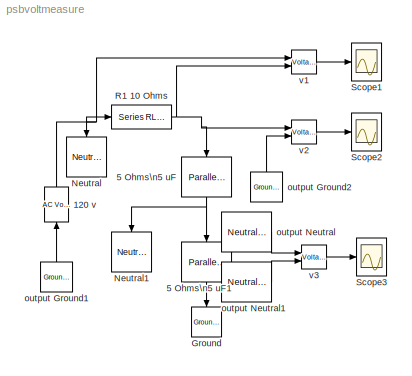
MODEL psbvoltmeasure
KIND model
BLOCK [Reference] 120 v  REF=powerlib2/Electrical\nSources/AC Voltage Source
  A = 120
  F = 60
  P = 0
  PSBOutputType = 1
  Ports = [1, 1]
  SourceBlock = powerlib2/Electrical\nSources/AC Voltage Source
  SourceType = AC Voltage Source
  Tag = PoWeRsYsTeMbLoCk
  mesure = None
  stime = 0
BLOCK [Reference] 5 Ohms\n5 uF  REF=powerlib2/Elements/Parallel RLC Branch
  PSBOutputType = 1
  Ports = [1, 1]
  SourceBlock = powerlib2/Elements/Parallel RLC Branch
  SourceType = Parallel RLC Branch
  Tag = PoWeRsYsTeMbLoCk
  a = 5
  b = inf
  c = 5e-06
  mesure = None
BLOCK [Reference] 5 Ohms\n5 uF1  REF=powerlib2/Elements/Parallel RLC Branch
  PSBOutputType = 1
  Ports = [1, 1]
  SourceBlock = powerlib2/Elements/Parallel RLC Branch
  SourceType = Parallel RLC Branch
  Tag = PoWeRsYsTeMbLoCk
  a = 3
  b = inf
  c = 0
  mesure = None
BLOCK [Reference] Ground  REF=powerlib2/Connectors/Ground (input)
  Ports = [1]
  SourceBlock = powerlib2/Connectors/Ground (input)
  SourceType = Ground
  Tag = PoWeRsYsTeMbLoCk
BLOCK [Reference] Neutral  REF=powerlib2/Connectors/Neutral (input)
  Ports = [1]
  SourceBlock = powerlib2/Connectors/Neutral (input)
  SourceType = Neutral
  Tag = PoWeRsYsTeMbLoCk
  no = 10
BLOCK [Reference] Neutral1  REF=powerlib2/Connectors/Neutral (input)
  Ports = [1]
  SourceBlock = powerlib2/Connectors/Neutral (input)
  SourceType = Neutral
  Tag = PoWeRsYsTeMbLoCk
  no = 20
BLOCK [Reference] R1 10 Ohms  REF=powerlib2/Elements/Series RLC Branch
  PSBOutputType = 1
  Ports = [1, 1]
  SourceBlock = powerlib2/Elements/Series RLC Branch
  SourceType = Series RLC Branch
  Tag = PoWeRsYsTeMbLoCk
  a = 10
  b = 0
  c = inf
  mesure = None
BLOCK [Scope] Scope1
  DataFormat = Array
  NumInputPorts = 1
  Ports = [1]
  TickLabels = on
  TimeRange = 0.1
  YMax = 100
  YMin = -100
BLOCK [Scope] Scope2
  DataFormat = Array
  NumInputPorts = 1
  Ports = [1]
  TickLabels = on
  TimeRange = 0.1
  YMax = 60
  YMin = -60
BLOCK [Scope] Scope3
  DataFormat = Array
  NumInputPorts = 1
  Ports = [1]
  TickLabels = on
  TimeRange = 0.1
  YMax = 120
  YMin = -120
BLOCK [Reference] output Ground1  REF=powerlib2/Connectors/Ground (output)
  PSBOutputType = 1
  Ports = [0, 1]
  SourceBlock = powerlib2/Connectors/Ground (output)
  SourceType = Ground
  Tag = PoWeRsYsTeMbLoCk
BLOCK [Reference] output Ground2  REF=powerlib2/Connectors/Ground (output)
  PSBOutputType = 1
  Ports = [0, 1]
  SourceBlock = powerlib2/Connectors/Ground (output)
  SourceType = Ground
  Tag = PoWeRsYsTeMbLoCk
BLOCK [Reference] output Neutral  REF=powerlib2/Connectors/Neutral (output)
  PSBOutputType = 1
  Ports = [0, 1]
  SourceBlock = powerlib2/Connectors/Neutral (output)
  SourceType = Neutral
  Tag = PoWeRsYsTeMbLoCk
  no = 10
BLOCK [Reference] output Neutral1  REF=powerlib2/Connectors/Neutral (output)
  PSBOutputType = 1
  Ports = [0, 1]
  SourceBlock = powerlib2/Connectors/Neutral (output)
  SourceType = Neutral
  Tag = PoWeRsYsTeMbLoCk
  no = 20
BLOCK [Reference] v1  REF=powerlib2/Measurements/Voltage Measurement
  OutputType = Magnitude
  PSBOutputType = 0
  PSBequivalent = 0
  PhasorSimulation = off
  Ports = [2, 1]
  SourceBlock = powerlib2/Measurements/Voltage Measurement
  SourceType = Voltage Measurement
  Tag = PoWeRsYsTeMmEaSuReMeNt
BLOCK [Reference] v2  REF=powerlib2/Measurements/Voltage Measurement
  OutputType = Magnitude
  PSBOutputType = 0
  PSBequivalent = 0
  PhasorSimulation = off
  Ports = [2, 1]
  SourceBlock = powerlib2/Measurements/Voltage Measurement
  SourceType = Voltage Measurement
  Tag = PoWeRsYsTeMmEaSuReMeNt
BLOCK [Reference] v3  REF=powerlib2/Measurements/Voltage Measurement
  OutputType = Magnitude
  PSBOutputType = 0
  PSBequivalent = 0
  PhasorSimulation = off
  Ports = [2, 1]
  SourceBlock = powerlib2/Measurements/Voltage Measurement
  SourceType = Voltage Measurement
  Tag = PoWeRsYsTeMmEaSuReMeNt
NET 120 v:1 -> Neutral:1, R1 10 Ohms:1, v1:1
LINE 5 Ohms\n5 uF1:1 -> Ground:1
NET 5 Ohms\n5 uF:1 -> 5 Ohms\n5 uF1:1, Neutral1:1
NET R1 10 Ohms:1 -> 5 Ohms\n5 uF:1, v1:2, v2:1
LINE output Ground1:1 -> 120 v:1
LINE output Ground2:1 -> v2:2
LINE output Neutral1:1 -> v3:2
LINE output Neutral:1 -> v3:1
LINE v1:1 -> Scope1:1
LINE v2:1 -> Scope2:1
LINE v3:1 -> Scope3:1
note: NET lines group one-source signal fan-out (src -> all destinations, sorted); 1:1 wires keep LINE
